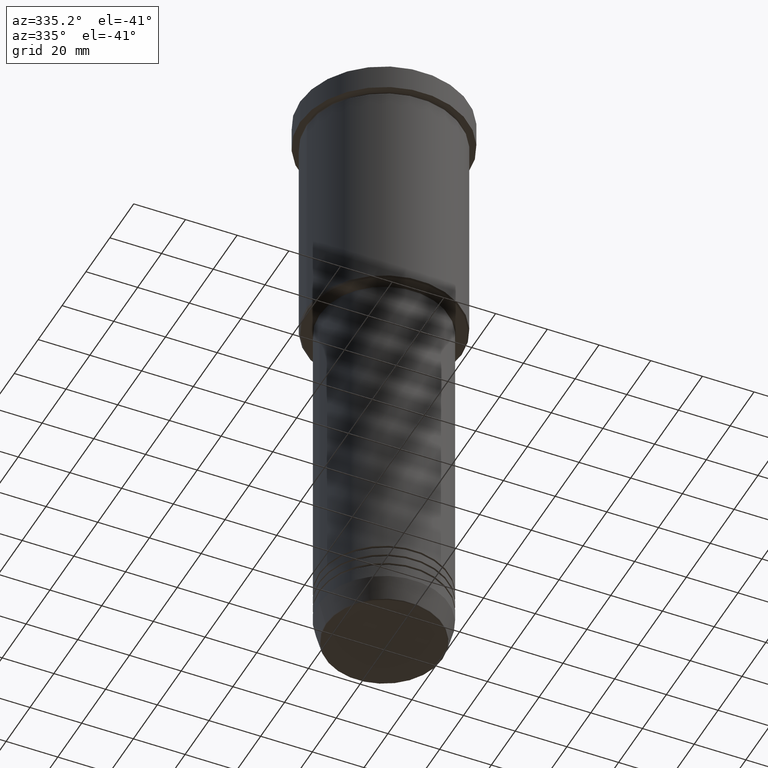
[diagram: clean part render]
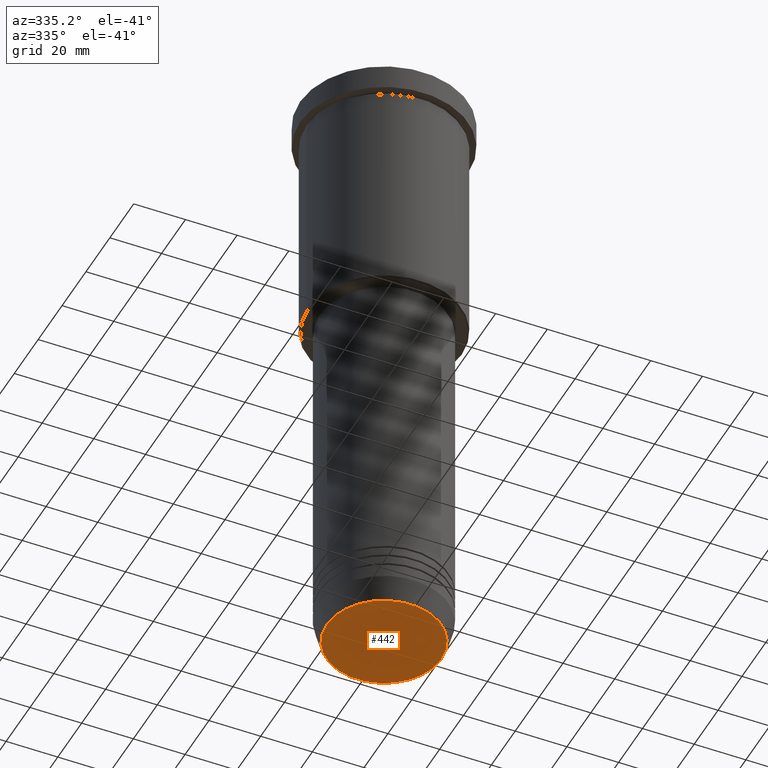
[diagram: same view with one face highlighted and labeled with its STEP entity id]
A machine part, auxiliary view. The second image highlights one B-rep face of the part: STEP entity #442.
In plain terms, the highlighted planar face has unit normal (0, -0, 1).
Its self-contained STEP definition (entity closure, byte-faithful):
#19 = EDGE_CURVE ( 'NONE', #1083, #319, #844, .T. ) ;
#28 = CARTESIAN_POINT ( 'NONE',  ( -22.20479377413041533, 2.748875911406055577E-15, -240.0000000000000000 ) ) ;
#60 = AXIS2_PLACEMENT_3D ( 'NONE', #1178, #259, #1091 ) ;
#135 = PLANE ( 'NONE',  #184 ) ;
#184 = AXIS2_PLACEMENT_3D ( 'NONE', #700, #248, #430 ) ;
#218 = CARTESIAN_POINT ( 'NONE',  ( 0.000000000000000000, 0.000000000000000000, -240.0000000000000000 ) ) ;
#248 = DIRECTION ( 'NONE',  ( 0.000000000000000000, -0.000000000000000000, 1.000000000000000000 ) ) ;
#259 = DIRECTION ( 'NONE',  ( 0.000000000000000000, 0.000000000000000000, -1.000000000000000000 ) ) ;
#319 = VERTEX_POINT ( 'NONE', #28 ) ;
#409 = ORIENTED_EDGE ( 'NONE', *, *, #1048, .T. ) ;
#430 = DIRECTION ( 'NONE',  ( 1.000000000000000000, 0.000000000000000000, 0.000000000000000000 ) ) ;
#442 = ADVANCED_FACE ( 'NONE', ( #1156 ), #135, .F. ) ;
#552 = AXIS2_PLACEMENT_3D ( 'NONE', #218, #938, #867 ) ;
#700 = CARTESIAN_POINT ( 'NONE',  ( 0.000000000000000000, 0.000000000000000000, -240.0000000000000000 ) ) ;
#703 = CARTESIAN_POINT ( 'NONE',  ( 22.20479377413041533, 0.000000000000000000, -240.0000000000000000 ) ) ;
#844 = CIRCLE ( 'NONE', #552, 22.20479377413041533 ) ;
#867 = DIRECTION ( 'NONE',  ( 1.000000000000000000, 0.000000000000000000, 0.000000000000000000 ) ) ;
#885 = ORIENTED_EDGE ( 'NONE', *, *, #19, .T. ) ;
#938 = DIRECTION ( 'NONE',  ( 0.000000000000000000, 0.000000000000000000, -1.000000000000000000 ) ) ;
#1048 = EDGE_CURVE ( 'NONE', #319, #1083, #1052, .T. ) ;
#1052 = CIRCLE ( 'NONE', #60, 22.20479377413041533 ) ;
#1083 = VERTEX_POINT ( 'NONE', #703 ) ;
#1090 = EDGE_LOOP ( 'NONE', ( #885, #409 ) ) ;
#1091 = DIRECTION ( 'NONE',  ( 1.000000000000000000, 0.000000000000000000, 0.000000000000000000 ) ) ;
#1156 = FACE_OUTER_BOUND ( 'NONE', #1090, .T. ) ;
#1178 = CARTESIAN_POINT ( 'NONE',  ( 0.000000000000000000, 0.000000000000000000, -240.0000000000000000 ) ) ;